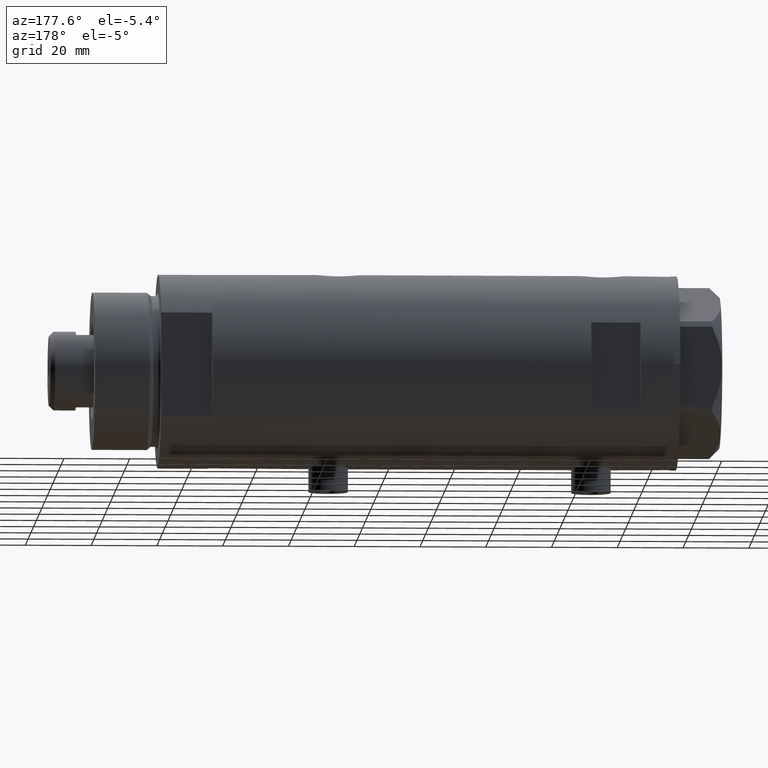
[diagram: clean part render]
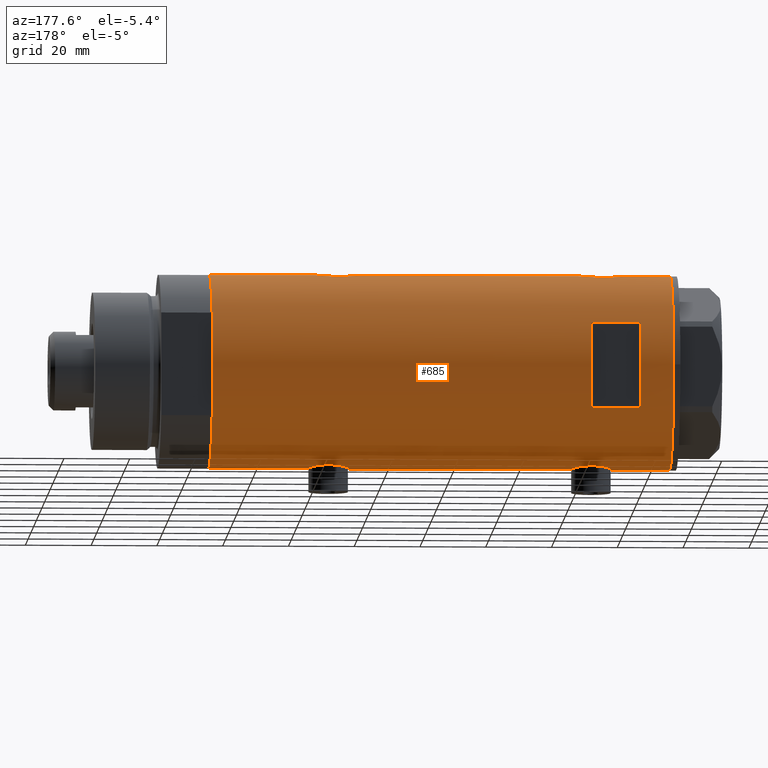
[diagram: same view with one face highlighted and labeled with its STEP entity id]
A machine part, auxiliary view. The second image highlights one B-rep face of the part: STEP entity #685.
In plain terms, the highlighted cylindrical surface (partial cylindrical patch) has radius 29.5 mm, axis along (-1, -0, 0).
Its self-contained STEP definition (entity closure, byte-faithful):
#13 = CARTESIAN_POINT ( 'NONE',  ( -28.96085629491409108, 5.616414220648534794, -31.02800360409991498 ) ) ;
#16 = CARTESIAN_POINT ( 'NONE',  ( -29.21045586191521437, 4.133246019522339942, 50.80573901566481965 ) ) ;
#21 = CARTESIAN_POINT ( 'NONE',  ( 28.58083212642745607, 7.306745240314146628, 47.89046330563792253 ) ) ;
#25 = CARTESIAN_POINT ( 'NONE',  ( 29.50000000000000355, -2.068661527048439545E-15, -38.39999999999999147 ) ) ;
#32 = VECTOR ( 'NONE', #2268, 1000.000000000000000 ) ;
#36 = VERTEX_POINT ( 'NONE', #1825 ) ;
#47 = CARTESIAN_POINT ( 'NONE',  ( 12.96148139681573319, 26.49999999999998934, 60.09999999999998721 ) ) ;
#72 = ORIENTED_EDGE ( 'NONE', *, *, #1454, .F. ) ;
#80 = CARTESIAN_POINT ( 'NONE',  ( 29.40165444879503909, 2.418426732012822100, 42.49632943565210041 ) ) ;
#91 = CARTESIAN_POINT ( 'NONE',  ( -28.87539346372183857, 6.038655803256918198, -32.17547335916925277 ) ) ;
#110 = CARTESIAN_POINT ( 'NONE',  ( 29.26131531204081426, 3.767377415172554311, 56.10345302571128201 ) ) ;
#119 = CARTESIAN_POINT ( 'NONE',  ( -28.99817753551063859, 5.423057650933438723, 49.23396151462593195 ) ) ;
#129 = CARTESIAN_POINT ( 'NONE',  ( -29.50000000000000355, 3.612706708267620518E-15, 39.84999999999999432 ) ) ;
#133 = CARTESIAN_POINT ( 'NONE',  ( 29.50000000000000355, -8.867894669064240341E-21, -23.39999999999999147 ) ) ;
#139 = VERTEX_POINT ( 'NONE', #47 ) ;
#140 = CARTESIAN_POINT ( 'NONE',  ( -29.07940225710135351, 4.969011347753392371, -37.61269734470183579 ) ) ;
#148 = CARTESIAN_POINT ( 'NONE',  ( -28.94521404191311120, 5.694822755760257316, 43.51666953598655141 ) ) ;
#170 = VERTEX_POINT ( 'NONE', #2567 ) ;
#216 = EDGE_CURVE ( 'NONE', #2641, #2130, #1449, .T. ) ;
#221 = DIRECTION ( 'NONE',  ( 0.000000000000000000, 0.000000000000000000, 1.000000000000000000 ) ) ;
#224 = CARTESIAN_POINT ( 'NONE',  ( -29.43341305963175003, 2.016871341298211551, -39.72974668998804759 ) ) ;
#268 = AXIS2_PLACEMENT_3D ( 'NONE', #1383, #3926, #3952 ) ;
#301 = DIRECTION ( 'NONE',  ( 0.000000000000000000, 0.000000000000000000, 1.000000000000000000 ) ) ;
#329 = CARTESIAN_POINT ( 'NONE',  ( 29.43668864566816623, 1.946133027943908855, -38.14730912701000420 ) ) ;
#335 = EDGE_CURVE ( 'NONE', #3941, #518, #2335, .T. ) ;
#338 = CARTESIAN_POINT ( 'NONE',  ( -28.94521404191312186, 5.694822755760260868, -36.38333046401345428 ) ) ;
#374 = EDGE_CURVE ( 'NONE', #1911, #139, #2410, .T. ) ;
#375 = CARTESIAN_POINT ( 'NONE',  ( 29.31463363472446204, 3.333180401682677374, -37.63656844683045222 ) ) ;
#394 = CARTESIAN_POINT ( 'NONE',  ( 29.48742029994219038, 0.9867701249543437969, 42.14905492505778994 ) ) ;
#415 = CARTESIAN_POINT ( 'NONE',  ( 29.48463566286631377, 0.9832945201638395583, 57.03937451762292454 ) ) ;
#419 = EDGE_CURVE ( 'NONE', #3961, #36, #3336, .T. ) ;
#438 = CARTESIAN_POINT ( 'NONE',  ( 28.72066933684370227, 6.738715173607846332, 46.27163044046444185 ) ) ;
#458 = VECTOR ( 'NONE', #301, 1000.000000000000000 ) ;
#473 = CARTESIAN_POINT ( 'NONE',  ( 29.08308069045668631, 4.954707331652121738, 55.25173628376772683 ) ) ;
#483 = CARTESIAN_POINT ( 'NONE',  ( -12.96148139681573319, 26.49999999999998934, 60.09999999999998721 ) ) ;
#518 = VERTEX_POINT ( 'NONE', #3622 ) ;
#555 = DIRECTION ( 'NONE',  ( 1.000000000000000000, -1.776356839400250267E-15, 0.000000000000000000 ) ) ;
#562 = CARTESIAN_POINT ( 'NONE',  ( -29.48933702067640539, 0.8192029158410158995, -39.99950722266698477 ) ) ;
#578 = EDGE_LOOP ( 'NONE', ( #3889, #1247, #4685, #2171, #1830, #3825, #72, #3122, #2118, #2531, #4518, #3758 ) ) ;
#595 = EDGE_LOOP ( 'NONE', ( #788, #3853, #3215, #3175 ) ) ;
#682 = LINE ( 'NONE', #3609, #458 ) ;
#685 = ADVANCED_FACE ( 'NONE', ( #1445, #2600 ), #3323, .T. ) ;
#695 = CARTESIAN_POINT ( 'NONE',  ( -28.87327190949137901, 6.049038945481233220, -35.42451728205170980 ) ) ;
#720 = CARTESIAN_POINT ( 'NONE',  ( -28.96258065965881556, 5.606121065329693565, -36.57051985068761013 ) ) ;
#737 = CARTESIAN_POINT ( 'NONE',  ( 29.50000000000000000, 0.4977435627019808351, -38.39999999999999147 ) ) ;
#743 = CIRCLE ( 'NONE', #3989, 29.50000000000000355 ) ;
#751 = CARTESIAN_POINT ( 'NONE',  ( -28.83925158138407951, 6.209208576703536764, 45.27801617131193268 ) ) ;
#755 = CARTESIAN_POINT ( 'NONE',  ( 29.17471722935868428, 4.373569479501278501, 43.50231157590983599 ) ) ;
#770 = CARTESIAN_POINT ( 'NONE',  ( -28.96258065965880846, 5.606121065329690900, 43.32948014931237424 ) ) ;
#776 = CARTESIAN_POINT ( 'NONE',  ( 28.89369475765811757, 5.952264974793427754, 54.16950516186245324 ) ) ;
#784 = EDGE_CURVE ( 'NONE', #3367, #4601, #1294, .T. ) ;
#788 = ORIENTED_EDGE ( 'NONE', *, *, #419, .F. ) ;
#795 = CARTESIAN_POINT ( 'NONE',  ( 29.40387556522357571, 2.422597899785629227, 56.71486039769832388 ) ) ;
#807 = EDGE_CURVE ( 'NONE', #2130, #4584, #3069, .T. ) ;
#834 = CARTESIAN_POINT ( 'NONE',  ( 28.77649569280673703, 6.494415104660911986, 53.35934988816622848 ) ) ;
#843 = CARTESIAN_POINT ( 'NONE',  ( -28.89816269917384517, 5.930588606439749277, 44.08529684457830200 ) ) ;
#889 = CARTESIAN_POINT ( 'NONE',  ( 29.49999999999999645, 0.2453482418156872069, -23.39999999999998792 ) ) ;
#900 = CARTESIAN_POINT ( 'NONE',  ( -28.83035796536222861, 6.249836767212678446, 46.51143494622721164 ) ) ;
#1063 = CARTESIAN_POINT ( 'NONE',  ( -29.43187585711095267, 2.013330896687707927, -27.87959139970892508 ) ) ;
#1074 = CARTESIAN_POINT ( 'NONE',  ( 28.62953349941190950, 7.116010646391489836, -28.48020539076899027 ) ) ;
#1100 = CARTESIAN_POINT ( 'NONE',  ( 28.59637095282950270, 7.245897747848926151, -32.85127374277607970 ) ) ;
#1115 = CARTESIAN_POINT ( 'NONE',  ( -29.45783481716065921, 1.627188261681548287, 40.05163589091055343 ) ) ;
#1128 = CARTESIAN_POINT ( 'NONE',  ( 29.45150476095191650, 1.707859807438201427, -38.20707118656058299 ) ) ;
#1136 = DIRECTION ( 'NONE',  ( 0.000000000000000000, 0.000000000000000000, 1.000000000000000000 ) ) ;
#1146 = CARTESIAN_POINT ( 'NONE',  ( 28.65280969280606982, 7.019670864411686750, 46.94786831316888964 ) ) ;
#1150 = CARTESIAN_POINT ( 'NONE',  ( 28.58083212642746318, 7.306745240314148404, -32.60953669436207747 ) ) ;
#1166 = CARTESIAN_POINT ( 'NONE',  ( 28.54372006395177763, 7.450900983269891142, 50.58765735635913785 ) ) ;
#1183 = CARTESIAN_POINT ( 'NONE',  ( 29.38138226830144006, 2.652609128011935269, 42.58045398040328422 ) ) ;
#1213 = CARTESIAN_POINT ( 'NONE',  ( -29.33500454540941149, 3.134363790739242095, 51.52262134463679644 ) ) ;
#1235 = CARTESIAN_POINT ( 'NONE',  ( -29.38727827406289705, 2.583363936682820494, -39.49478026128666386 ) ) ;
#1238 = CARTESIAN_POINT ( 'NONE',  ( -29.43187585711095267, 2.013330896687707927, 52.02040860029106994 ) ) ;
#1239 = CARTESIAN_POINT ( 'NONE',  ( 29.50000000000000355, 0.000000000000000000, -70.09999999999999432 ) ) ;
#1247 = ORIENTED_EDGE ( 'NONE', *, *, #2926, .T. ) ;
#1258 = CARTESIAN_POINT ( 'NONE',  ( -29.50000000000000355, 3.612706708236066082E-15, -40.05000000000000426 ) ) ;
#1267 = CARTESIAN_POINT ( 'NONE',  ( -29.07940225710133575, 4.969011347753390595, 42.28730265529815568 ) ) ;
#1290 = CARTESIAN_POINT ( 'NONE',  ( -29.50000000000000355, 0.2042768310961494138, -40.05000000000001137 ) ) ;
#1294 = LINE ( 'NONE', #4551, #3798 ) ;
#1307 = CARTESIAN_POINT ( 'NONE',  ( 29.50000000000000355, 0.000000000000000000, -70.09999999999999432 ) ) ;
#1313 = CARTESIAN_POINT ( 'NONE',  ( -29.21113960567727474, 4.128622307952522164, -38.51014533383553129 ) ) ;
#1383 = CARTESIAN_POINT ( 'NONE',  ( 0.000000000000000000, 0.000000000000000000, 70.09999999999999432 ) ) ;
#1393 = CARTESIAN_POINT ( 'NONE',  ( -29.50000000000000355, 3.612708057484692393E-15, -70.09999999999999432 ) ) ;
#1424 = CARTESIAN_POINT ( 'NONE',  ( -29.07990598238133018, 4.966177878631057752, -29.98314968353490073 ) ) ;
#1438 = CARTESIAN_POINT ( 'NONE',  ( 29.40165444879503909, 2.418426732012822544, -38.00367056434787116 ) ) ;
#1445 = FACE_BOUND ( 'NONE', #595, .T. ) ;
#1449 = B_SPLINE_CURVE_WITH_KNOTS ( 'NONE', 3,
 ( #25, #737, #3663, #1128, #329, #1438, #3725, #375, #1506, #4075, #2908, #1824, #2932, #2230, #3706, #4412, #3315, #2979, #1845, #1100, #1150, #1889, #2634, #4050, #3637, #4389, #1074, #4026, #2183, #1539, #3472, #3440, #2721, #3421, #2004, #3818, #1950, #3056, #1926, #3014, #2275, #2750, #3084, #1584, #889, #133 ),
 .UNSPECIFIED., .F., .F.,
 ( 4, 2, 2, 2, 2, 2, 2, 2, 2, 2, 2, 2, 2, 2, 2, 2, 2, 2, 2, 2, 2, 2, 4 ),
 ( 2.009130182846392961E-18, 0.001471587963626178313, 0.002207381945439266819, 0.002943175927252355759, 0.004414763890878538842, 0.005150557872691629950, 0.005886351854504721925, 0.007357939818130915417, 0.008829527781757108909, 0.009565321763570205221, 0.01030111574538330153, 0.01177270370900949416, 0.01324429167263568505, 0.01471587963626187941, 0.01545167361807497398, 0.01618746759988807030, 0.01692326158170116834, 0.01765905556351426292, 0.01913064352714046595, 0.02060223149076666205, 0.02207381945439286508, 0.02280961343620596313, 0.02354540741801906117 ),
 .UNSPECIFIED. ) ;
#1454 = EDGE_CURVE ( 'NONE', #518, #4442, #3975, .T. ) ;
#1473 = CARTESIAN_POINT ( 'NONE',  ( -29.49128627113591961, 0.8212788586050381312, 52.30923124908873945 ) ) ;
#1489 = CARTESIAN_POINT ( 'NONE',  ( -28.86473101544358144, 6.089252369705489443, -32.37667050833967863 ) ) ;
#1494 = CARTESIAN_POINT ( 'NONE',  ( -28.91416466586724354, 5.850419487802253293, 48.30827647633628175 ) ) ;
#1501 = CARTESIAN_POINT ( 'NONE',  ( 28.72322018454529768, 6.726124749058826957, 52.92706852850999155 ) ) ;
#1506 = CARTESIAN_POINT ( 'NONE',  ( 29.26187100173484978, 3.763222966830668703, -37.40598258060619230 ) ) ;
#1519 = CARTESIAN_POINT ( 'NONE',  ( 28.59637095282950625, 7.245897747848926151, 47.64872625722391319 ) ) ;
#1531 = VERTEX_POINT ( 'NONE', #1881 ) ;
#1536 = CARTESIAN_POINT ( 'NONE',  ( 28.54350045195475971, 7.451747857568896016, 48.61733997124497364 ) ) ;
#1537 = CARTESIAN_POINT ( 'NONE',  ( 29.50000000000000355, -8.867894669064240341E-21, 57.09999999999999432 ) ) ;
#1539 = CARTESIAN_POINT ( 'NONE',  ( 28.77649569280672992, 6.494415104660919091, -27.14065011183376441 ) ) ;
#1569 = CARTESIAN_POINT ( 'NONE',  ( -28.99817753551064570, 5.423057650933437834, -30.66603848537406307 ) ) ;
#1573 = CARTESIAN_POINT ( 'NONE',  ( -29.38727827406289705, 2.583363936682818274, 40.40521973871332762 ) ) ;
#1574 = DIRECTION ( 'NONE',  ( 0.000000000000000000, 0.000000000000000000, 1.000000000000000000 ) ) ;
#1581 = CARTESIAN_POINT ( 'NONE',  ( 28.53073993742368586, 7.499791908386146844, 49.10538051566958018 ) ) ;
#1584 = CARTESIAN_POINT ( 'NONE',  ( 29.49693976195335310, 0.4910732786937820893, -23.41200905704375046 ) ) ;
#1592 = CARTESIAN_POINT ( 'NONE',  ( -29.43341305963176424, 2.016871341298207998, 40.17025331001194388 ) ) ;
#1613 = CARTESIAN_POINT ( 'NONE',  ( 29.50000000000000355, 0.000000000000000000, -70.09999999999999432 ) ) ;
#1617 = CARTESIAN_POINT ( 'NONE',  ( -29.31451746246149526, 3.307268797680004369, -39.10714841985004142 ) ) ;
#1621 = CARTESIAN_POINT ( 'NONE',  ( -29.46640581083894617, 1.421634556901803403, 52.18958891089418017 ) ) ;
#1647 = CARTESIAN_POINT ( 'NONE',  ( -29.45783481716065211, 1.627188261681552950, -39.84836410908945226 ) ) ;
#1663 = DIRECTION ( 'NONE',  ( -0.000000000000000000, -0.000000000000000000, -1.000000000000000000 ) ) ;
#1782 = DIRECTION ( 'NONE',  ( 0.000000000000000000, 0.000000000000000000, 1.000000000000000000 ) ) ;
#1824 = CARTESIAN_POINT ( 'NONE',  ( 29.08204711695422517, 4.951923910293530184, -36.53816021594297325 ) ) ;
#1825 = CARTESIAN_POINT ( 'NONE',  ( -12.96148139681574030, 26.50000000000000355, 45.09999999999998721 ) ) ;
#1830 = ORIENTED_EDGE ( 'NONE', *, *, #2843, .F. ) ;
#1836 = CARTESIAN_POINT ( 'NONE',  ( -29.21113960567726409, 4.128622307952519499, 41.38985466616446018 ) ) ;
#1845 = CARTESIAN_POINT ( 'NONE',  ( 28.63233008736633778, 7.102474189478609645, -33.32185131238886555 ) ) ;
#1873 = AXIS2_PLACEMENT_3D ( 'NONE', #3644, #3573, #3993 ) ;
#1881 = CARTESIAN_POINT ( 'NONE',  ( -29.50000000000000355, 3.612708057484692393E-15, -70.09999999999999432 ) ) ;
#1885 = CARTESIAN_POINT ( 'NONE',  ( 29.49693976195336020, 0.4910732786937798133, 57.08799094295623178 ) ) ;
#1889 = CARTESIAN_POINT ( 'NONE',  ( 28.54350045195475261, 7.451747857568895128, -31.88266002875499794 ) ) ;
#1904 = CARTESIAN_POINT ( 'NONE',  ( 29.50000000000000355, -8.867894669064240341E-21, 57.09999999999999432 ) ) ;
#1911 = VERTEX_POINT ( 'NONE', #483 ) ;
#1926 = CARTESIAN_POINT ( 'NONE',  ( 29.31521205951408504, 3.327945423969221217, -24.16093490772910357 ) ) ;
#1945 = CARTESIAN_POINT ( 'NONE',  ( 29.50000000000000355, -1.363453657738827866E-15, 42.09999999999999432 ) ) ;
#1949 = EDGE_CURVE ( 'NONE', #3367, #3480, #4671, .T. ) ;
#1950 = CARTESIAN_POINT ( 'NONE',  ( 29.14546206473282197, 4.578181670952601756, -24.93943908396707698 ) ) ;
#1985 = CARTESIAN_POINT ( 'NONE',  ( -28.86473101544358855, 6.089252369705490331, 47.52332949166031995 ) ) ;
#2004 = CARTESIAN_POINT ( 'NONE',  ( 28.98787507734748203, 5.475789924529798292, -25.76910956623374460 ) ) ;
#2109 = AXIS2_PLACEMENT_3D ( 'NONE', #2916, #1136, #4783 ) ;
#2118 = ORIENTED_EDGE ( 'NONE', *, *, #4558, .F. ) ;
#2130 = VERTEX_POINT ( 'NONE', #4171 ) ;
#2171 = ORIENTED_EDGE ( 'NONE', *, *, #784, .T. ) ;
#2183 = CARTESIAN_POINT ( 'NONE',  ( 28.72322018454529768, 6.726124749058831398, -27.57293147149000490 ) ) ;
#2197 = CARTESIAN_POINT ( 'NONE',  ( -29.33500454540941149, 3.134363790739243871, -28.37737865536320570 ) ) ;
#2206 = CARTESIAN_POINT ( 'NONE',  ( -29.50000000000000355, 3.612708057484692393E-15, 70.09999999999999432 ) ) ;
#2221 = CARTESIAN_POINT ( 'NONE',  ( -29.49787850362430675, 0.4089683628077635524, 39.85998973562985270 ) ) ;
#2225 = CARTESIAN_POINT ( 'NONE',  ( 29.14416130131007421, 4.572185141625601190, 43.64974588234441910 ) ) ;
#2230 = CARTESIAN_POINT ( 'NONE',  ( 28.95615051861772571, 5.649234316505056697, -35.85715418746725192 ) ) ;
#2247 = CARTESIAN_POINT ( 'NONE',  ( 29.14546206473282197, 4.578181670952601756, 55.56056091603292657 ) ) ;
#2257 = AXIS2_PLACEMENT_3D ( 'NONE', #2388, #3873, #555 ) ;
#2268 = DIRECTION ( 'NONE',  ( 0.000000000000000000, 0.000000000000000000, 1.000000000000000000 ) ) ;
#2270 = CARTESIAN_POINT ( 'NONE',  ( 29.45150476095192360, 1.707859807438201871, 42.29292881343940280 ) ) ;
#2275 = CARTESIAN_POINT ( 'NONE',  ( 29.43913092143246857, 1.954882548385551644, -23.64250765266648102 ) ) ;
#2287 = CARTESIAN_POINT ( 'NONE',  ( 29.50000000000000355, -1.363453657738827866E-15, 42.09999999999999432 ) ) ;
#2308 = CARTESIAN_POINT ( 'NONE',  ( 28.98787507734748914, 5.475789924529796515, 54.73089043376624119 ) ) ;
#2317 = CARTESIAN_POINT ( 'NONE',  ( -29.01875661852154664, 5.308007315943999771, 42.79411629999108158 ) ) ;
#2335 = LINE ( 'NONE', #1307, #4353 ) ;
#2336 = EDGE_CURVE ( 'NONE', #36, #1911, #2652, .T. ) ;
#2355 = CARTESIAN_POINT ( 'NONE',  ( 12.96148139681573319, 26.49999999999999645, -70.09999999999999432 ) ) ;
#2357 = CARTESIAN_POINT ( 'NONE',  ( 12.96148139681571898, 26.50000000000000355, 45.09999999999998721 ) ) ;
#2371 = CARTESIAN_POINT ( 'NONE',  ( -28.87539346372184568, 6.038655803256916421, 47.72452664083071738 ) ) ;
#2383 = CARTESIAN_POINT ( 'NONE',  ( 29.50000000000000355, -2.068661527048439545E-15, -38.39999999999999147 ) ) ;
#2388 = CARTESIAN_POINT ( 'NONE',  ( 0.000000000000000000, 0.000000000000000000, 60.09999999999998721 ) ) ;
#2410 = CIRCLE ( 'NONE', #2257, 29.50000000000000355 ) ;
#2430 = VECTOR ( 'NONE', #1663, 1000.000000000000000 ) ;
#2531 = ORIENTED_EDGE ( 'NONE', *, *, #807, .F. ) ;
#2534 = CARTESIAN_POINT ( 'NONE',  ( -29.25454443288368367, 3.812919888526643764, -28.83102620819089168 ) ) ;
#2567 = CARTESIAN_POINT ( 'NONE',  ( -29.50000000000000355, -1.251314770453635394E-15, 52.34999999999999432 ) ) ;
#2581 = CARTESIAN_POINT ( 'NONE',  ( -29.50000000000000355, 7.333735512235174214E-18, -27.54999999999999361 ) ) ;
#2585 = CARTESIAN_POINT ( 'NONE',  ( -29.37156641804198287, 2.775801885207112019, 51.71472569706632783 ) ) ;
#2600 = FACE_OUTER_BOUND ( 'NONE', #578, .T. ) ;
#2611 = CARTESIAN_POINT ( 'NONE',  ( 29.26187100173485334, 3.763222966830669147, 43.09401741939380059 ) ) ;
#2634 = CARTESIAN_POINT ( 'NONE',  ( 28.53073993742368941, 7.499791908386146844, -31.39461948433038785 ) ) ;
#2639 = EDGE_CURVE ( 'NONE', #139, #3961, #2714, .T. ) ;
#2641 = VERTEX_POINT ( 'NONE', #2383 ) ;
#2652 = LINE ( 'NONE', #4108, #32 ) ;
#2654 = CARTESIAN_POINT ( 'NONE',  ( 28.62953349941190240, 7.116010646391488947, 52.01979460923099197 ) ) ;
#2671 = CARTESIAN_POINT ( 'NONE',  ( 28.95590528945748687, 5.641861744747095564, 54.54764911928883464 ) ) ;
#2681 = CARTESIAN_POINT ( 'NONE',  ( -29.12335997091252793, 4.707903814166468415, 50.23078007378799725 ) ) ;
#2690 = CARTESIAN_POINT ( 'NONE',  ( 29.43668864566815913, 1.946133027943908633, 42.35269087298997448 ) ) ;
#2699 = CARTESIAN_POINT ( 'NONE',  ( -29.49787850362430319, 0.4089683628077628863, -40.04001026437014588 ) ) ;
#2714 = LINE ( 'NONE', #2355, #2430 ) ;
#2721 = CARTESIAN_POINT ( 'NONE',  ( 28.89369475765811757, 5.952264974793427754, -26.33049483813752545 ) ) ;
#2735 = CARTESIAN_POINT ( 'NONE',  ( -29.12318177724206336, 4.709191267490243860, 41.97028949758345817 ) ) ;
#2750 = CARTESIAN_POINT ( 'NONE',  ( 29.47533087885488712, 1.230190383163953571, -23.49747868232938686 ) ) ;
#2761 = DIRECTION ( 'NONE',  ( 0.000000000000000000, 0.000000000000000000, 1.000000000000000000 ) ) ;
#2843 = EDGE_CURVE ( 'NONE', #170, #4601, #3599, .T. ) ;
#2896 = CARTESIAN_POINT ( 'NONE',  ( -28.83035796536222151, 6.249836767212675781, -33.38856505377280826 ) ) ;
#2908 = CARTESIAN_POINT ( 'NONE',  ( 29.14416130131008842, 4.572185141625601190, -36.85025411765555958 ) ) ;
#2916 = CARTESIAN_POINT ( 'NONE',  ( 0.000000000000000000, 0.000000000000000000, -70.09999999999999432 ) ) ;
#2918 = CARTESIAN_POINT ( 'NONE',  ( -29.45614208737134021, 1.620034288692375091, -27.76011356088387672 ) ) ;
#2926 = EDGE_CURVE ( 'NONE', #1531, #3480, #3514, .T. ) ;
#2932 = CARTESIAN_POINT ( 'NONE',  ( 29.05056090758568388, 5.132790299589557570, -36.37391726652082724 ) ) ;
#2943 = CARTESIAN_POINT ( 'NONE',  ( -29.12335997091253148, 4.707903814166467527, -29.66921992621196225 ) ) ;
#2947 = CARTESIAN_POINT ( 'NONE',  ( -29.37021410611214023, 2.770135525807581711, 40.49365930977168659 ) ) ;
#2976 = CARTESIAN_POINT ( 'NONE',  ( 28.69800960089390074, 6.832546664705480666, 52.70275030291305285 ) ) ;
#2979 = CARTESIAN_POINT ( 'NONE',  ( 28.65280969280606982, 7.019670864411682309, -33.55213168683108904 ) ) ;
#3010 = CARTESIAN_POINT ( 'NONE',  ( 28.80468126786726657, 6.368639251981141669, 53.56860510682070498 ) ) ;
#3014 = CARTESIAN_POINT ( 'NONE',  ( 29.40387556522357215, 2.422597899785628339, -23.78513960230166191 ) ) ;
#3023 = VECTOR ( 'NONE', #3800, 1000.000000000000000 ) ;
#3041 = CARTESIAN_POINT ( 'NONE',  ( -28.83028740688047620, 6.250162243045984667, -34.20646065908373146 ) ) ;
#3043 = CARTESIAN_POINT ( 'NONE',  ( -29.50000000000000711, 0.2042768310961484424, 39.84999999999999432 ) ) ;
#3050 = B_SPLINE_CURVE_WITH_KNOTS ( 'NONE', 3,
 ( #1945, #4536, #394, #2270, #2690, #80, #1183, #3747, #2611, #755, #2225, #3416, #3763, #4147, #4473, #3702, #438, #1146, #3333, #1519, #21, #1536, #1581, #4455, #1166, #3787, #2654, #2976, #1501, #834, #3010, #4091, #776, #2671, #2308, #473, #2247, #110, #3392, #795, #4129, #3721, #415, #1885, #3357, #1904 ),
 .UNSPECIFIED., .F., .F.,
 ( 4, 2, 2, 2, 2, 2, 2, 2, 2, 2, 2, 2, 2, 2, 2, 2, 2, 2, 2, 2, 2, 2, 4 ),
 ( 1.324216582005999085E-18, 0.001471587963626213007, 0.002207381945439318427, 0.002943175927252423846, 0.004414763890878634252, 0.005150557872691738370, 0.005886351854504841621, 0.007357939818131030776, 0.008829527781757219931, 0.009565321763570316244, 0.01030111574538341256, 0.01177270370900960171, 0.01324429167263579260, 0.01471587963626198176, 0.01545167361807507807, 0.01618746759988817091, 0.01692326158170126896, 0.01765905556351436007, 0.01913064352714053881, 0.02060223149076671756, 0.02207381945439289284, 0.02280961343620598047, 0.02354540741801906811 ),
 .UNSPECIFIED. ) ;
#3056 = CARTESIAN_POINT ( 'NONE',  ( 29.26131531204080360, 3.767377415172554311, -24.39654697428870733 ) ) ;
#3061 = CARTESIAN_POINT ( 'NONE',  ( -29.37021410611213668, 2.770135525807583043, -39.40634069022829067 ) ) ;
#3067 = CARTESIAN_POINT ( 'NONE',  ( -29.48933702067640539, 0.8192029158410143452, 39.90049277733301381 ) ) ;
#3069 = LINE ( 'NONE', #1239, #3023 ) ;
#3084 = CARTESIAN_POINT ( 'NONE',  ( 29.48463566286630666, 0.9832945201638434440, -23.46062548237705414 ) ) ;
#3095 = CARTESIAN_POINT ( 'NONE',  ( -29.45614208737133310, 1.620034288692374647, 52.13988643911609699 ) ) ;
#3122 = ORIENTED_EDGE ( 'NONE', *, *, #335, .F. ) ;
#3175 = ORIENTED_EDGE ( 'NONE', *, *, #2336, .F. ) ;
#3194 = EDGE_CURVE ( 'NONE', #3832, #1531, #743, .T. ) ;
#3215 = ORIENTED_EDGE ( 'NONE', *, *, #374, .F. ) ;
#3279 = CARTESIAN_POINT ( 'NONE',  ( -29.49128627113591250, 0.8212788586050365769, -27.59076875091126269 ) ) ;
#3303 = CARTESIAN_POINT ( 'NONE',  ( -28.91416466586724709, 5.850419487802254181, -31.59172352366371328 ) ) ;
#3306 = CARTESIAN_POINT ( 'NONE',  ( -29.25435602127557999, 3.814249285079248430, 41.13216270466008950 ) ) ;
#3315 = CARTESIAN_POINT ( 'NONE',  ( 28.72066933684369516, 6.738715173607846332, -34.22836955953555105 ) ) ;
#3323 = CYLINDRICAL_SURFACE ( 'NONE', #2109, 29.50000000000000355 ) ;
#3326 = CARTESIAN_POINT ( 'NONE',  ( -29.41782704931129899, 2.208494778271265169, -27.94961702072823684 ) ) ;
#3329 = CARTESIAN_POINT ( 'NONE',  ( -29.41782704931129899, 2.208494778271261172, 51.95038297927174398 ) ) ;
#3333 = CARTESIAN_POINT ( 'NONE',  ( 28.63233008736633778, 7.102474189478610533, 47.17814868761112024 ) ) ;
#3336 = CIRCLE ( 'NONE', #1873, 29.50000000000000355 ) ;
#3357 = CARTESIAN_POINT ( 'NONE',  ( 29.50000000000000711, 0.2453482418156837930, 57.10000000000000853 ) ) ;
#3367 = VERTEX_POINT ( 'NONE', #3475 ) ;
#3392 = CARTESIAN_POINT ( 'NONE',  ( 29.31521205951408859, 3.327945423969223881, 56.33906509227089288 ) ) ;
#3404 = CARTESIAN_POINT ( 'NONE',  ( -29.50000000000000711, 0.4142160563134684170, -27.54999999999999716 ) ) ;
#3416 = CARTESIAN_POINT ( 'NONE',  ( 29.08204711695421452, 4.951923910293528408, 43.96183978405700543 ) ) ;
#3421 = CARTESIAN_POINT ( 'NONE',  ( 28.95590528945747977, 5.641861744747094676, -25.95235088071115115 ) ) ;
#3440 = CARTESIAN_POINT ( 'NONE',  ( 28.86328010881652872, 6.097564286278116086, -26.52631709077303768 ) ) ;
#3444 = LINE ( 'NONE', #1613, #4250 ) ;
#3472 = CARTESIAN_POINT ( 'NONE',  ( 28.80468126786726657, 6.368639251981146998, -26.93139489317929502 ) ) ;
#3475 = CARTESIAN_POINT ( 'NONE',  ( -29.50000000000000355, 7.333735512235174214E-18, -27.54999999999999361 ) ) ;
#3477 = CARTESIAN_POINT ( 'NONE',  ( -29.25435602127558354, 3.814249285079243101, -38.76783729533990908 ) ) ;
#3480 = VERTEX_POINT ( 'NONE', #1258 ) ;
#3514 = LINE ( 'NONE', #1393, #3744 ) ;
#3573 = DIRECTION ( 'NONE',  ( -0.000000000000000000, -0.000000000000000000, 1.000000000000000000 ) ) ;
#3599 = B_SPLINE_CURVE_WITH_KNOTS ( 'NONE', 3,
 ( #4332, #4745, #1473, #1621, #3095, #1238, #3329, #2585, #1213, #4085, #16, #2681, #4067, #119, #4426, #1494, #4579, #2371, #1985, #4158, #900, #4526, #751, #3776, #843, #148, #770, #3854, #2317, #1267, #2735, #1836, #3306, #4788, #4217, #2947, #1573, #1592, #1115, #3696, #3067, #2221, #3043, #4184 ),
 .UNSPECIFIED., .F., .F.,
 ( 4, 2, 2, 2, 2, 2, 2, 2, 2, 2, 2, 2, 2, 2, 2, 2, 2, 2, 2, 2, 2, 4 ),
 ( 1.215526637565713846E-18, 0.001224749128302325164, 0.001837123692453484711, 0.002449498256604644257, 0.003674247384906971156, 0.004898996513209298923, 0.006123745641511625822, 0.007348494769813952721, 0.007960869333965118338, 0.008573243898116282222, 0.009797993026418609988, 0.01102274215472093775, 0.01224749128302326726, 0.01285986584717442247, 0.01347224041132557767, 0.01469698953962788809, 0.01592173866793019851, 0.01653411323208135372, 0.01714648779623250893, 0.01837123692453480894, 0.01898361148868596068, 0.01959598605283711242 ),
 .UNSPECIFIED. ) ;
#3609 = CARTESIAN_POINT ( 'NONE',  ( -29.50000000000000355, 3.612708057484692393E-15, -70.09999999999999432 ) ) ;
#3622 = CARTESIAN_POINT ( 'NONE',  ( 29.50000000000000355, 0.000000000000000000, 70.09999999999999432 ) ) ;
#3637 = CARTESIAN_POINT ( 'NONE',  ( 28.54372006395178119, 7.450900983269892031, -29.91234264364084794 ) ) ;
#3644 = CARTESIAN_POINT ( 'NONE',  ( 0.000000000000000000, 0.000000000000000000, 45.09999999999998721 ) ) ;
#3663 = CARTESIAN_POINT ( 'NONE',  ( 29.48742029994219038, 0.9867701249543442410, -38.35094507494218874 ) ) ;
#3696 = CARTESIAN_POINT ( 'NONE',  ( -29.48289442777306490, 1.024392307325222573, 39.93111777471299462 ) ) ;
#3702 = CARTESIAN_POINT ( 'NONE',  ( 28.77473834757381610, 6.507156404236260627, 45.83837315939703672 ) ) ;
#3706 = CARTESIAN_POINT ( 'NONE',  ( 28.89325003604223951, 5.958922200807236891, -35.48084786495515175 ) ) ;
#3721 = CARTESIAN_POINT ( 'NONE',  ( 29.47533087885489067, 1.230190383163956458, 57.00252131767059183 ) ) ;
#3725 = CARTESIAN_POINT ( 'NONE',  ( 29.38138226830143296, 2.652609128011934825, -37.91954601959669446 ) ) ;
#3744 = VECTOR ( 'NONE', #2761, 1000.000000000000000 ) ;
#3747 = CARTESIAN_POINT ( 'NONE',  ( 29.31463363472445849, 3.333180401682678262, 42.86343155316954778 ) ) ;
#3758 = ORIENTED_EDGE ( 'NONE', *, *, #4169, .F. ) ;
#3763 = CARTESIAN_POINT ( 'NONE',  ( 29.05056090758568388, 5.132790299589556682, 44.12608273347915855 ) ) ;
#3776 = CARTESIAN_POINT ( 'NONE',  ( -28.87327190949137901, 6.049038945481235885, 44.47548271794828167 ) ) ;
#3787 = CARTESIAN_POINT ( 'NONE',  ( 28.59328333056173221, 7.258376466535469085, 51.55124667484830780 ) ) ;
#3796 = CARTESIAN_POINT ( 'NONE',  ( -29.21045586191521082, 4.133246019522339942, -29.09426098433517893 ) ) ;
#3798 = VECTOR ( 'NONE', #1574, 1000.000000000000000 ) ;
#3800 = DIRECTION ( 'NONE',  ( 0.000000000000000000, 0.000000000000000000, 1.000000000000000000 ) ) ;
#3818 = CARTESIAN_POINT ( 'NONE',  ( 29.08308069045668276, 4.954707331652127955, -25.24826371623226962 ) ) ;
#3825 = ORIENTED_EDGE ( 'NONE', *, *, #4369, .T. ) ;
#3832 = VERTEX_POINT ( 'NONE', #4111 ) ;
#3853 = ORIENTED_EDGE ( 'NONE', *, *, #2639, .F. ) ;
#3854 = CARTESIAN_POINT ( 'NONE',  ( -28.99931529802529795, 5.412890550536858747, 42.96870800944780910 ) ) ;
#3873 = DIRECTION ( 'NONE',  ( -0.000000000000000000, -0.000000000000000000, -1.000000000000000000 ) ) ;
#3880 = CARTESIAN_POINT ( 'NONE',  ( -29.33379699751450431, 3.132328395749495620, -39.21232164486112026 ) ) ;
#3889 = ORIENTED_EDGE ( 'NONE', *, *, #3194, .T. ) ;
#3901 = DIRECTION ( 'NONE',  ( 0.000000000000000000, 0.000000000000000000, 1.000000000000000000 ) ) ;
#3907 = CARTESIAN_POINT ( 'NONE',  ( -29.50000000000000355, 3.612706708236066082E-15, -40.05000000000000426 ) ) ;
#3926 = DIRECTION ( 'NONE',  ( 0.000000000000000000, 0.000000000000000000, 1.000000000000000000 ) ) ;
#3932 = CARTESIAN_POINT ( 'NONE',  ( -29.12318177724206336, 4.709191267490246524, -37.92971050241653330 ) ) ;
#3941 = VERTEX_POINT ( 'NONE', #1537 ) ;
#3952 = DIRECTION ( 'NONE',  ( 1.000000000000000000, 0.000000000000000000, 0.000000000000000000 ) ) ;
#3961 = VERTEX_POINT ( 'NONE', #2357 ) ;
#3964 = CARTESIAN_POINT ( 'NONE',  ( 0.000000000000000000, 0.000000000000000000, -70.09999999999999432 ) ) ;
#3975 = CIRCLE ( 'NONE', #268, 29.50000000000000355 ) ;
#3989 = AXIS2_PLACEMENT_3D ( 'NONE', #3964, #1782, #4761 ) ;
#3993 = DIRECTION ( 'NONE',  ( -1.000000000000000000, 3.552713678800500535E-15, 0.000000000000000000 ) ) ;
#4026 = CARTESIAN_POINT ( 'NONE',  ( 28.69800960089390074, 6.832546664705481554, -27.79724969708692583 ) ) ;
#4036 = CARTESIAN_POINT ( 'NONE',  ( -28.83909818927744695, 6.209925900742495841, -32.98221924548006001 ) ) ;
#4050 = CARTESIAN_POINT ( 'NONE',  ( 28.53063088452982043, 7.500206755597514707, -30.41171143095193585 ) ) ;
#4063 = CARTESIAN_POINT ( 'NONE',  ( -28.89816269917384872, 5.930588606439748389, -35.81470315542169658 ) ) ;
#4067 = CARTESIAN_POINT ( 'NONE',  ( -29.07990598238133373, 4.966177878631058640, 49.91685031646510140 ) ) ;
#4075 = CARTESIAN_POINT ( 'NONE',  ( 29.17471722935867717, 4.373569479501276724, -36.99768842409014269 ) ) ;
#4085 = CARTESIAN_POINT ( 'NONE',  ( -29.25454443288369077, 3.812919888526640655, 51.06897379180909979 ) ) ;
#4091 = CARTESIAN_POINT ( 'NONE',  ( 28.86328010881652872, 6.097564286278109869, 53.97368290922695877 ) ) ;
#4108 = CARTESIAN_POINT ( 'NONE',  ( -12.96148139681573319, 26.49999999999999645, -70.09999999999999432 ) ) ;
#4111 = CARTESIAN_POINT ( 'NONE',  ( 29.50000000000000355, 0.000000000000000000, -70.09999999999999432 ) ) ;
#4129 = CARTESIAN_POINT ( 'NONE',  ( 29.43913092143246146, 1.954882548385549423, 56.85749234733351187 ) ) ;
#4147 = CARTESIAN_POINT ( 'NONE',  ( 28.95615051861771860, 5.649234316505054032, 44.64284581253273387 ) ) ;
#4155 = CARTESIAN_POINT ( 'NONE',  ( -29.46640581083893551, 1.421634556901802515, -27.71041108910579354 ) ) ;
#4158 = CARTESIAN_POINT ( 'NONE',  ( -28.83909818927745050, 6.209925900742495841, 46.91778075451993857 ) ) ;
#4169 = EDGE_CURVE ( 'NONE', #3832, #2641, #3444, .T. ) ;
#4171 = CARTESIAN_POINT ( 'NONE',  ( 29.50000000000000355, -8.867894669064240341E-21, -23.39999999999999147 ) ) ;
#4184 = CARTESIAN_POINT ( 'NONE',  ( -29.50000000000000355, 3.612706708267620518E-15, 39.84999999999999432 ) ) ;
#4217 = CARTESIAN_POINT ( 'NONE',  ( -29.33379699751449365, 3.132328395749496064, 40.68767835513887121 ) ) ;
#4250 = VECTOR ( 'NONE', #221, 1000.000000000000000 ) ;
#4263 = CARTESIAN_POINT ( 'NONE',  ( -29.48289442777306490, 1.024392307325225904, -39.96888222528700396 ) ) ;
#4332 = CARTESIAN_POINT ( 'NONE',  ( -29.50000000000000355, -1.251314770453635394E-15, 52.34999999999999432 ) ) ;
#4353 = VECTOR ( 'NONE', #3901, 1000.000000000000000 ) ;
#4369 = EDGE_CURVE ( 'NONE', #170, #4442, #682, .T. ) ;
#4379 = CARTESIAN_POINT ( 'NONE',  ( -29.37156641804197932, 2.775801885207114239, -28.18527430293367786 ) ) ;
#4389 = CARTESIAN_POINT ( 'NONE',  ( 28.59328333056173221, 7.258376466535469973, -28.94875332515167798 ) ) ;
#4412 = CARTESIAN_POINT ( 'NONE',  ( 28.77473834757382321, 6.507156404236259739, -34.66162684060295618 ) ) ;
#4426 = CARTESIAN_POINT ( 'NONE',  ( -28.96085629491409463, 5.616414220648533018, 48.87199639590006939 ) ) ;
#4442 = VERTEX_POINT ( 'NONE', #2206 ) ;
#4455 = CARTESIAN_POINT ( 'NONE',  ( 28.53063088452982043, 7.500206755597514707, 50.08828856904803928 ) ) ;
#4473 = CARTESIAN_POINT ( 'NONE',  ( 28.89325003604224307, 5.958922200807236891, 45.01915213504484825 ) ) ;
#4518 = ORIENTED_EDGE ( 'NONE', *, *, #216, .F. ) ;
#4524 = CARTESIAN_POINT ( 'NONE',  ( -28.83925158138409017, 6.209208576703539428, -34.62198382868808011 ) ) ;
#4526 = CARTESIAN_POINT ( 'NONE',  ( -28.83028740688048686, 6.250162243045983779, 45.69353934091627423 ) ) ;
#4536 = CARTESIAN_POINT ( 'NONE',  ( 29.50000000000000711, 0.4977435627019808351, 42.09999999999998721 ) ) ;
#4545 = CARTESIAN_POINT ( 'NONE',  ( -29.01875661852154309, 5.308007315943998883, -37.10588370000889569 ) ) ;
#4551 = CARTESIAN_POINT ( 'NONE',  ( -29.50000000000000355, 3.612708057484692393E-15, -70.09999999999999432 ) ) ;
#4558 = EDGE_CURVE ( 'NONE', #4584, #3941, #3050, .T. ) ;
#4574 = CARTESIAN_POINT ( 'NONE',  ( -28.99931529802530150, 5.412890550536860523, -36.93129199055215395 ) ) ;
#4579 = CARTESIAN_POINT ( 'NONE',  ( -28.90008889585329399, 5.919338933253947665, 48.11640207058049157 ) ) ;
#4584 = VERTEX_POINT ( 'NONE', #2287 ) ;
#4601 = VERTEX_POINT ( 'NONE', #129 ) ;
#4671 = B_SPLINE_CURVE_WITH_KNOTS ( 'NONE', 3,
 ( #2581, #3404, #3279, #4155, #2918, #1063, #3326, #4379, #2197, #2534, #3796, #2943, #1424, #1569, #13, #3303, #4785, #91, #1489, #4036, #2896, #3041, #4524, #695, #4063, #338, #720, #4574, #4545, #140, #3932, #1313, #3477, #1617, #3880, #3061, #1235, #224, #1647, #4263, #562, #2699, #1290, #3907 ),
 .UNSPECIFIED., .F., .F.,
 ( 4, 2, 2, 2, 2, 2, 2, 2, 2, 2, 2, 2, 2, 2, 2, 2, 2, 2, 2, 2, 2, 4 ),
 ( 7.123987567693931303E-21, 0.001224749128302327550, 0.001837123692453492083, 0.002449498256604656400, 0.003674247384906980697, 0.004898996513209304994, 0.006123745641511629291, 0.007348494769813953588, 0.007960869333965100991, 0.008573243898116250997, 0.009797993026418545803, 0.01102274215472084234, 0.01224749128302314062, 0.01285986584717429930, 0.01347224041132545451, 0.01469698953962778921, 0.01592173866793012219, 0.01653411323208128780, 0.01714648779623245689, 0.01837123692453478466, 0.01898361148868595374, 0.01959598605283711936 ),
 .UNSPECIFIED. ) ;
#4685 = ORIENTED_EDGE ( 'NONE', *, *, #1949, .F. ) ;
#4745 = CARTESIAN_POINT ( 'NONE',  ( -29.50000000000000711, 0.4142160563134682505, 52.34999999999998010 ) ) ;
#4761 = DIRECTION ( 'NONE',  ( 1.000000000000000000, 0.000000000000000000, 0.000000000000000000 ) ) ;
#4783 = DIRECTION ( 'NONE',  ( 1.000000000000000000, 0.000000000000000000, 0.000000000000000000 ) ) ;
#4785 = CARTESIAN_POINT ( 'NONE',  ( -28.90008889585329044, 5.919338933253947665, -31.78359792941951056 ) ) ;
#4788 = CARTESIAN_POINT ( 'NONE',  ( -29.31451746246148460, 3.307268797680008365, 40.79285158014994295 ) ) ;